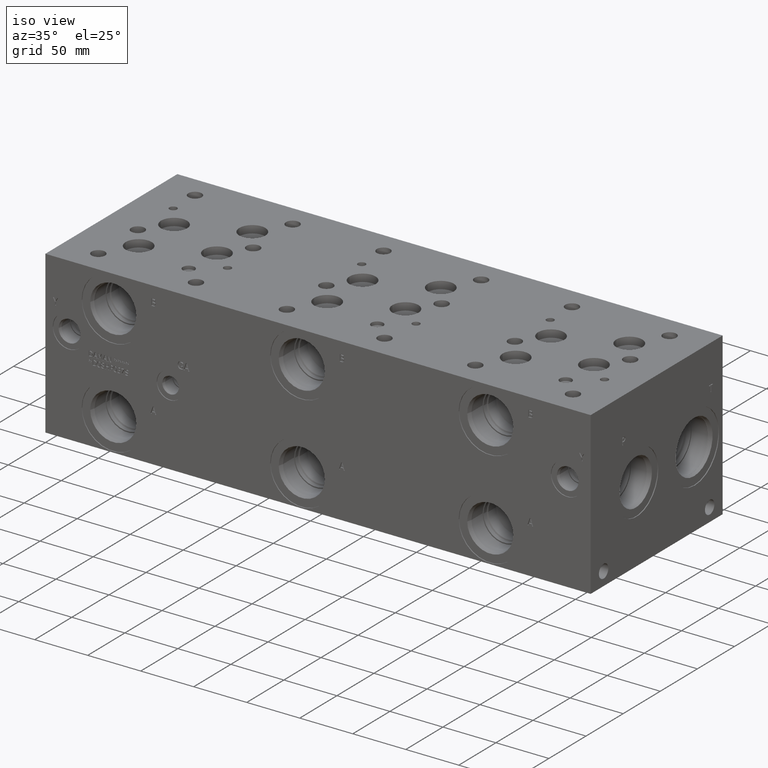
[diagram: clean part render]
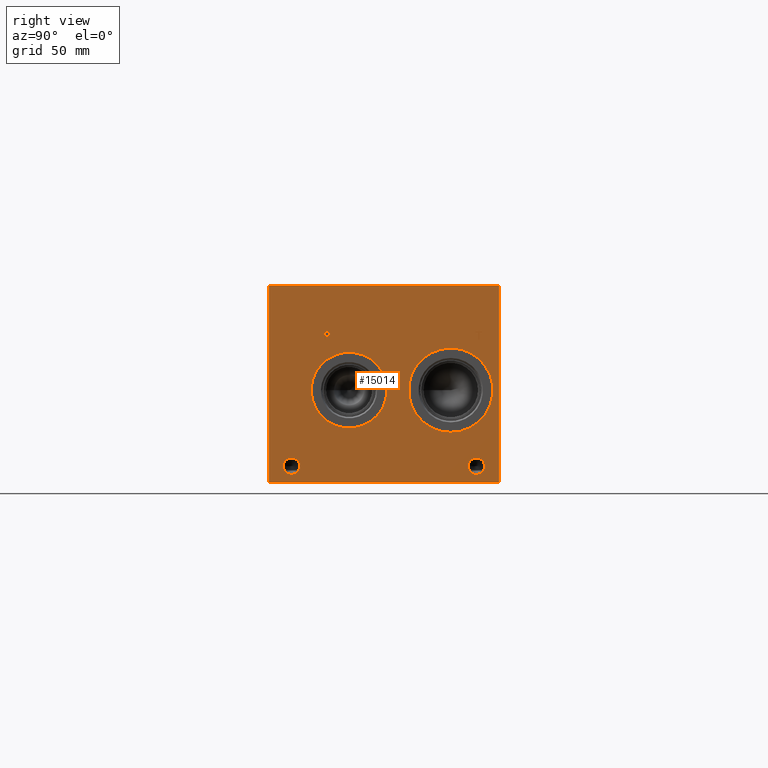
[diagram: tour spotlight — one face highlighted and labeled with its STEP entity id]
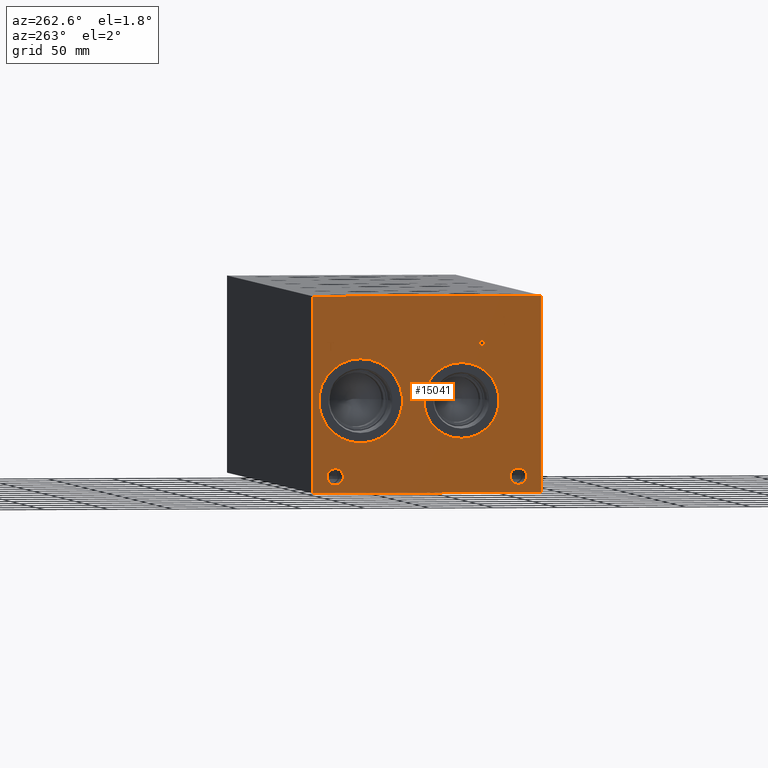
[diagram: tour spotlight — one face highlighted and labeled with its STEP entity id]
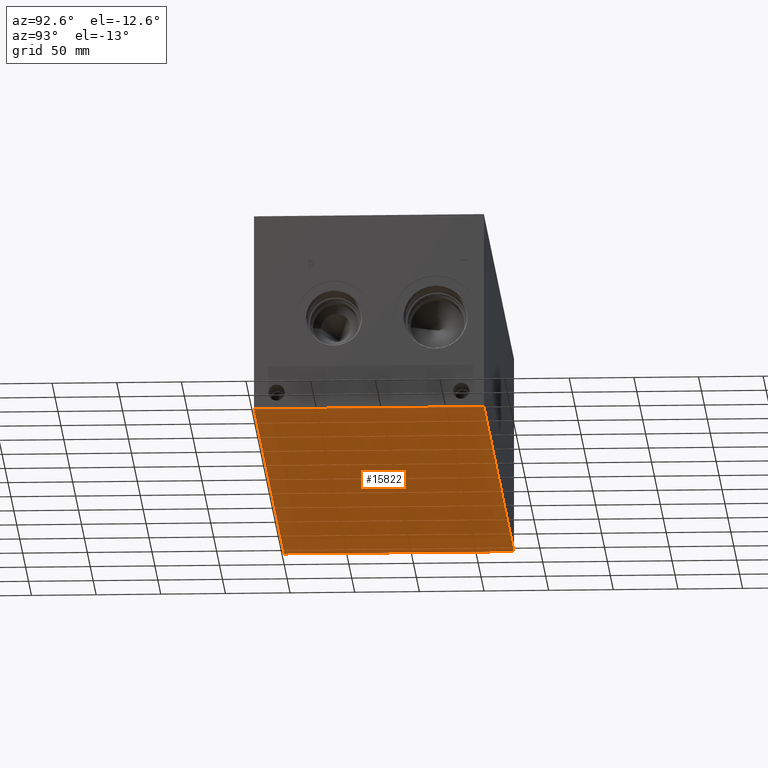
[diagram: tour spotlight — one face highlighted and labeled with its STEP entity id]
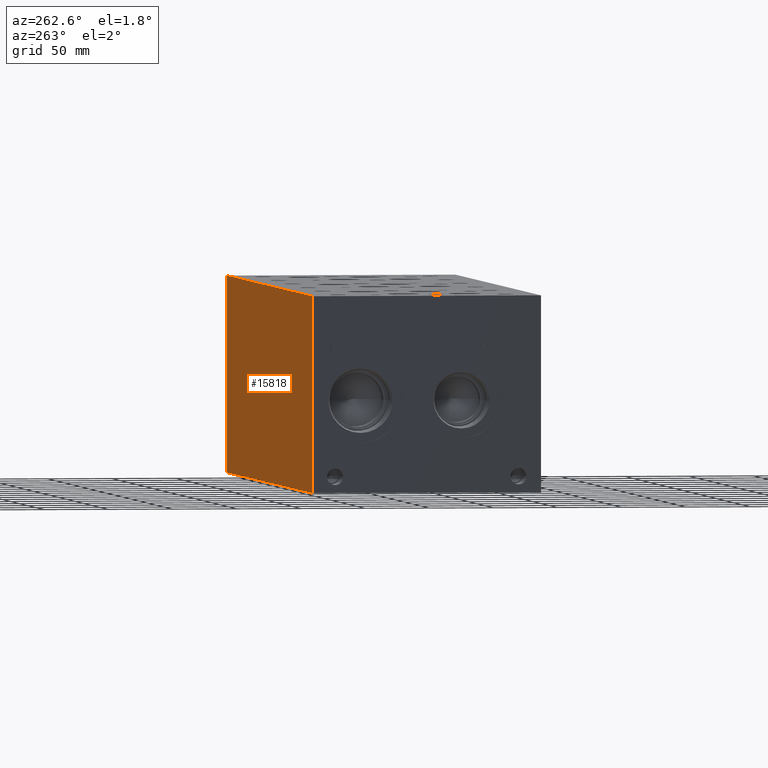
[diagram: tour spotlight — one face highlighted and labeled with its STEP entity id]
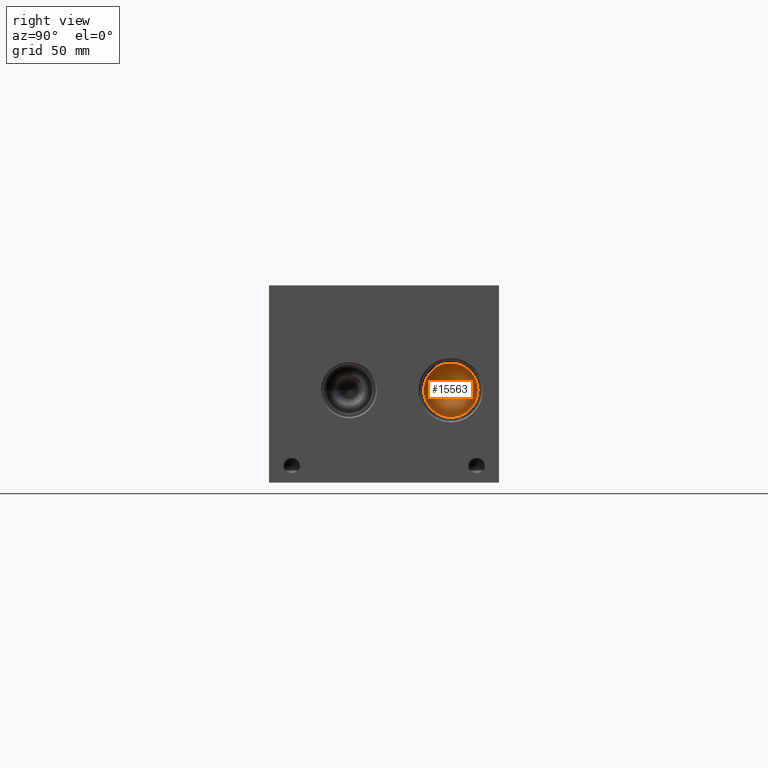
[diagram: tour spotlight — one face highlighted and labeled with its STEP entity id]
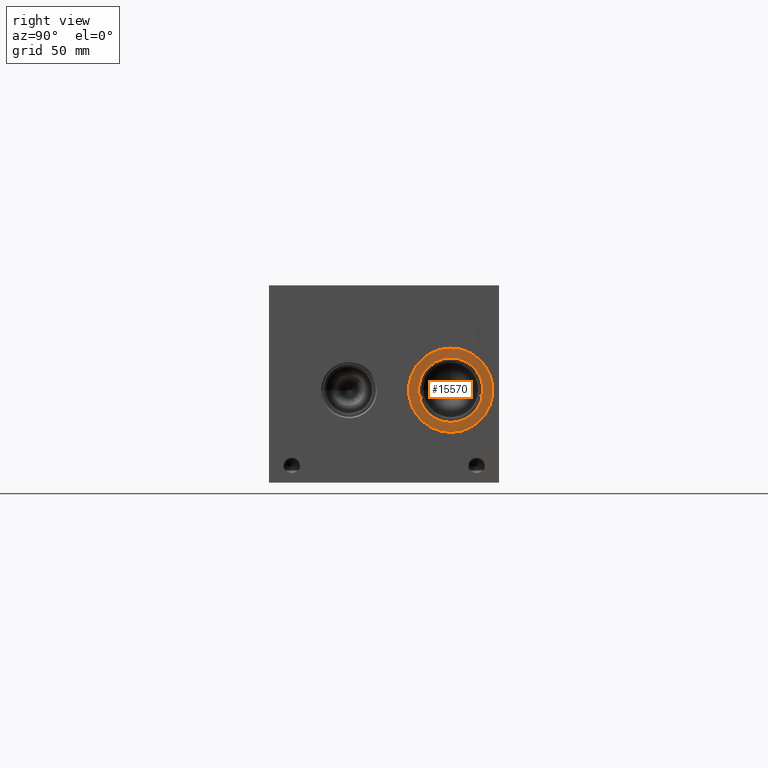
[diagram: tour spotlight — one face highlighted and labeled with its STEP entity id]
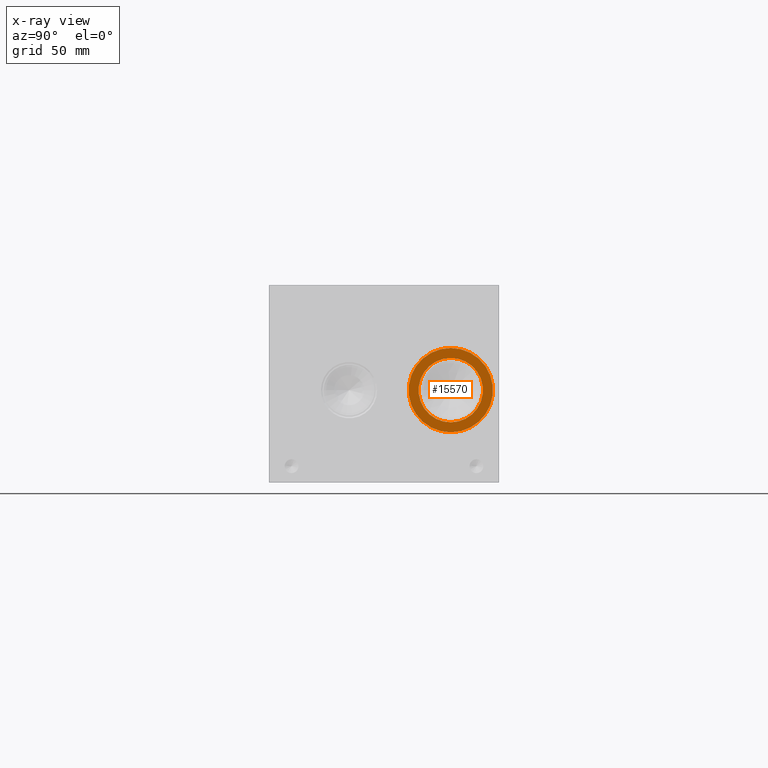
[diagram: x-ray of the same camera — body ghosted, this tour face saturated]
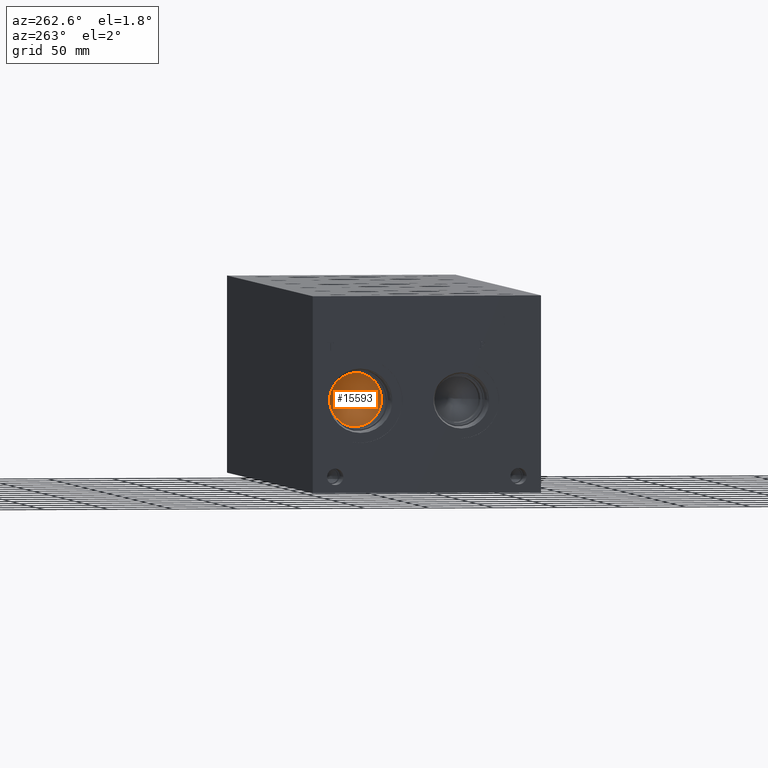
[diagram: tour spotlight — one face highlighted and labeled with its STEP entity id]
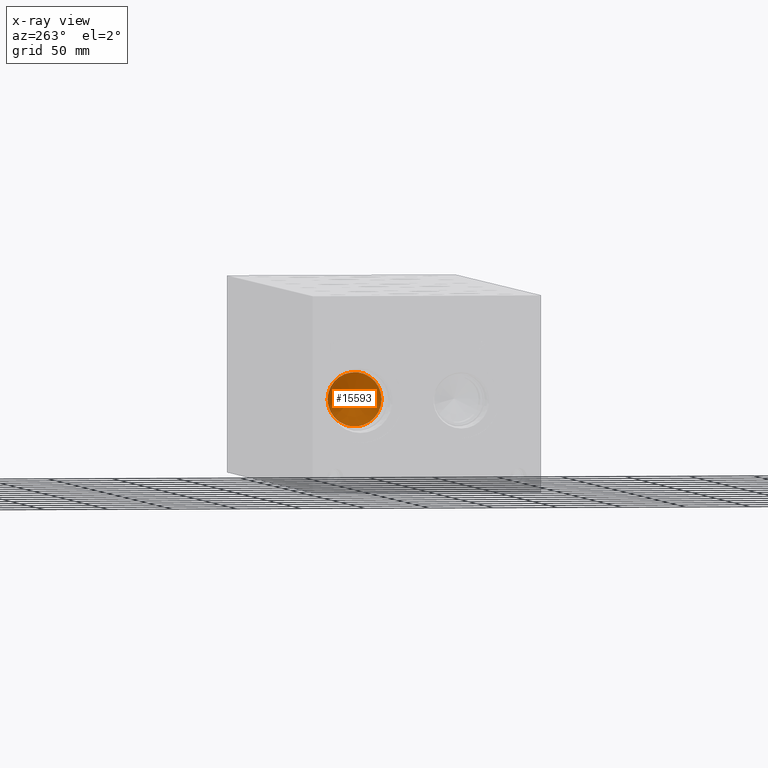
[diagram: x-ray of the same camera — body ghosted, this tour face saturated]
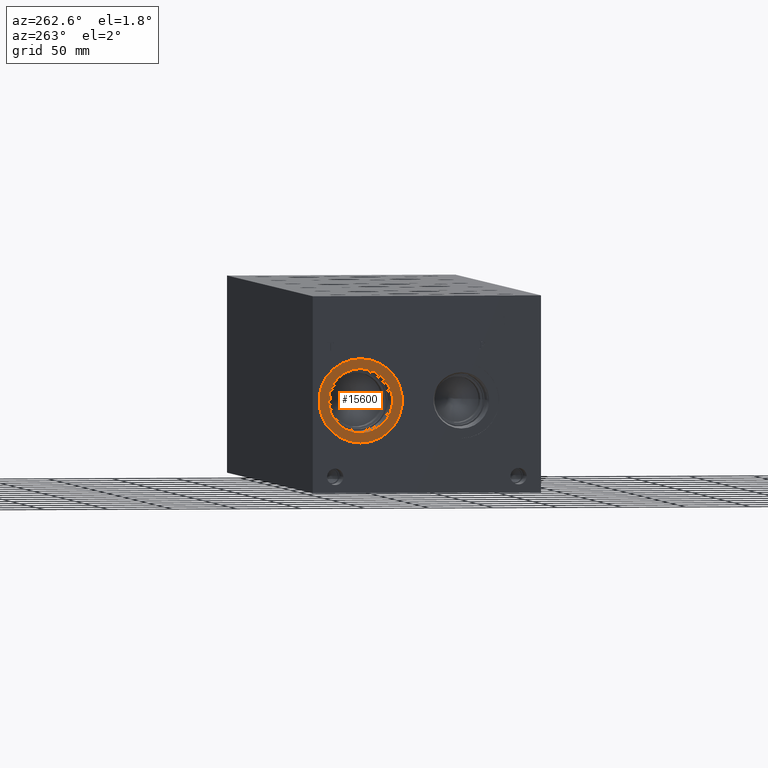
[diagram: tour spotlight — one face highlighted and labeled with its STEP entity id]
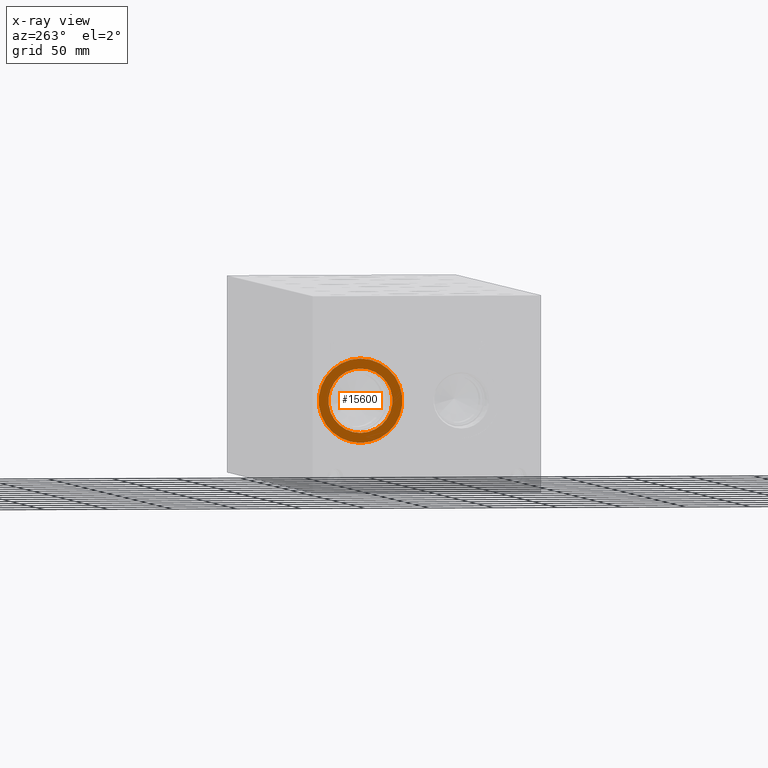
[diagram: x-ray of the same camera — body ghosted, this tour face saturated]
A machine part: a face-by-face anatomy tour. The part has 826 B-rep faces; the first image is the clean iso view, then the 8 largest visible faces are spotlighted one at a time (largest first), each with its STEP entity span.

Face 1 — right view, entity #15014. In plain terms, the highlighted planar face has unit normal (1, 0, 0).
Definition (entity closure, byte-faithful):
#239=CIRCLE('',#15847,32.5628);
#240=CIRCLE('',#15848,32.5628);
#241=CIRCLE('',#15849,29.2862);
#242=CIRCLE('',#15850,29.2862);
#243=CIRCLE('',#15851,6.35);
#244=CIRCLE('',#15852,6.35);
#245=CIRCLE('',#15853,6.35);
#246=CIRCLE('',#15854,6.35);
#716=FACE_BOUND('',#2145,.T.);
#717=FACE_BOUND('',#2146,.T.);
#718=FACE_BOUND('',#2147,.T.);
#719=FACE_BOUND('',#2148,.T.);
#720=FACE_BOUND('',#2149,.T.);
#721=FACE_BOUND('',#2150,.T.);
#882=PLANE('',#15846);
#1317=FACE_OUTER_BOUND('',#2144,.T.);
#2144=EDGE_LOOP('',(#9992,#9993,#9994,#9995));
#2145=EDGE_LOOP('',(#9996,#9997));
#2146=EDGE_LOOP('',(#9998,#9999));
#2147=EDGE_LOOP('',(#10000,#10001));
#2148=EDGE_LOOP('',(#10002,#10003));
#2149=EDGE_LOOP('',(#10004,#10005,#10006,#10007,#10008,#10009,#10010,#10011));
#2150=EDGE_LOOP('',(#10012,#10013,#10014,#10015,#10016,#10017,#10018,#10019,
#10020));
#3126=LINE('',#20729,#4494);
#3129=LINE('',#20735,#4497);
#3132=LINE('',#20741,#4500);
#3135=LINE('',#20747,#4503);
#3138=LINE('',#20753,#4506);
#3142=LINE('',#20796,#4510);
#3143=LINE('',#20798,#4511);
#3144=LINE('',#20800,#4512);
#3145=LINE('',#20801,#4513);
#3146=LINE('',#20820,#4514);
#3147=LINE('',#20822,#4515);
#3148=LINE('',#20824,#4516);
#3149=LINE('',#20826,#4517);
#3150=LINE('',#20828,#4518);
#3151=LINE('',#20830,#4519);
#3152=LINE('',#20832,#4520);
#3153=LINE('',#20833,#4521);
#4494=VECTOR('',#16991,10.);
#4497=VECTOR('',#16996,10.);
#4500=VECTOR('',#17001,10.);
#4503=VECTOR('',#17006,10.);
#4506=VECTOR('',#17011,10.);
#4510=VECTOR('',#17019,10.);
#4511=VECTOR('',#17020,10.);
#4512=VECTOR('',#17021,10.);
#4513=VECTOR('',#17022,10.);
#4514=VECTOR('',#17039,10.);
#4515=VECTOR('',#17040,10.);
#4516=VECTOR('',#17041,10.);
#4517=VECTOR('',#17042,10.);
#4518=VECTOR('',#17043,10.);
#4519=VECTOR('',#17044,10.);
#4520=VECTOR('',#17045,10.);
#4521=VECTOR('',#17046,10.);
#5854=B_SPLINE_CURVE_WITH_KNOTS('',2,(#20696,#20697,#20698,#20699),
 .UNSPECIFIED.,.F.,.F.,(3,1,3),(0.,1.,2.),.UNSPECIFIED.);
#5856=B_SPLINE_CURVE_WITH_KNOTS('',2,(#20717,#20718,#20719,#20720),
 .UNSPECIFIED.,.F.,.F.,(3,1,3),(0.,1.,2.),.UNSPECIFIED.);
#5858=B_SPLINE_CURVE_WITH_KNOTS('',2,(#20766,#20767,#20768,#20769),
 .UNSPECIFIED.,.F.,.F.,(3,1,3),(0.,1.,2.),.UNSPECIFIED.);
#5860=B_SPLINE_CURVE_WITH_KNOTS('',2,(#20784,#20785,#20786,#20787),
 .UNSPECIFIED.,.F.,.F.,(3,1,3),(0.,1.,2.),.UNSPECIFIED.);
#6208=VERTEX_POINT('',#20694);
#6209=VERTEX_POINT('',#20695);
#6212=VERTEX_POINT('',#20716);
#6214=VERTEX_POINT('',#20728);
#6216=VERTEX_POINT('',#20734);
#6218=VERTEX_POINT('',#20740);
#6220=VERTEX_POINT('',#20746);
#6222=VERTEX_POINT('',#20752);
#6224=VERTEX_POINT('',#20765);
#6226=VERTEX_POINT('',#20794);
#6227=VERTEX_POINT('',#20795);
#6228=VERTEX_POINT('',#20797);
#6229=VERTEX_POINT('',#20799);
#6230=VERTEX_POINT('',#20802);
#6231=VERTEX_POINT('',#20803);
#6232=VERTEX_POINT('',#20806);
#6233=VERTEX_POINT('',#20807);
#6234=VERTEX_POINT('',#20810);
#6235=VERTEX_POINT('',#20811);
#6236=VERTEX_POINT('',#20814);
#6237=VERTEX_POINT('',#20815);
#6238=VERTEX_POINT('',#20818);
#6239=VERTEX_POINT('',#20819);
#6240=VERTEX_POINT('',#20821);
#6241=VERTEX_POINT('',#20823);
#6242=VERTEX_POINT('',#20825);
#6243=VERTEX_POINT('',#20827);
#6244=VERTEX_POINT('',#20829);
#6245=VERTEX_POINT('',#20831);
#7741=EDGE_CURVE('',#6208,#6209,#5854,.T.);
#7745=EDGE_CURVE('',#6212,#6208,#5856,.T.);
#7748=EDGE_CURVE('',#6214,#6212,#3126,.T.);
#7751=EDGE_CURVE('',#6216,#6214,#3129,.T.);
#7754=EDGE_CURVE('',#6218,#6216,#3132,.T.);
#7757=EDGE_CURVE('',#6220,#6218,#3135,.T.);
#7760=EDGE_CURVE('',#6222,#6220,#3138,.T.);
#7763=EDGE_CURVE('',#6224,#6222,#5858,.T.);
#7766=EDGE_CURVE('',#6209,#6224,#5860,.T.);
#7768=EDGE_CURVE('',#6226,#6227,#3142,.T.);
#7769=EDGE_CURVE('',#6227,#6228,#3143,.T.);
#7770=EDGE_CURVE('',#6229,#6228,#3144,.T.);
#7771=EDGE_CURVE('',#6226,#6229,#3145,.T.);
#7772=EDGE_CURVE('',#6230,#6231,#239,.T.);
#7773=EDGE_CURVE('',#6231,#6230,#240,.T.);
#7774=EDGE_CURVE('',#6232,#6233,#241,.T.);
#7775=EDGE_CURVE('',#6233,#6232,#242,.T.);
#7776=EDGE_CURVE('',#6234,#6235,#243,.T.);
#7777=EDGE_CURVE('',#6235,#6234,#244,.T.);
#7778=EDGE_CURVE('',#6236,#6237,#245,.T.);
#7779=EDGE_CURVE('',#6237,#6236,#246,.T.);
#7780=EDGE_CURVE('',#6238,#6239,#3146,.T.);
#7781=EDGE_CURVE('',#6239,#6240,#3147,.T.);
#7782=EDGE_CURVE('',#6240,#6241,#3148,.T.);
#7783=EDGE_CURVE('',#6241,#6242,#3149,.T.);
#7784=EDGE_CURVE('',#6242,#6243,#3150,.T.);
#7785=EDGE_CURVE('',#6243,#6244,#3151,.T.);
#7786=EDGE_CURVE('',#6244,#6245,#3152,.T.);
#7787=EDGE_CURVE('',#6245,#6238,#3153,.T.);
#9992=ORIENTED_EDGE('',*,*,#7768,.T.);
#9993=ORIENTED_EDGE('',*,*,#7769,.T.);
#9994=ORIENTED_EDGE('',*,*,#7770,.F.);
#9995=ORIENTED_EDGE('',*,*,#7771,.F.);
#9996=ORIENTED_EDGE('',*,*,#7772,.T.);
#9997=ORIENTED_EDGE('',*,*,#7773,.T.);
#9998=ORIENTED_EDGE('',*,*,#7774,.T.);
#9999=ORIENTED_EDGE('',*,*,#7775,.T.);
#10000=ORIENTED_EDGE('',*,*,#7776,.T.);
#10001=ORIENTED_EDGE('',*,*,#7777,.T.);
#10002=ORIENTED_EDGE('',*,*,#7778,.T.);
#10003=ORIENTED_EDGE('',*,*,#7779,.T.);
#10004=ORIENTED_EDGE('',*,*,#7780,.T.);
#10005=ORIENTED_EDGE('',*,*,#7781,.T.);
#10006=ORIENTED_EDGE('',*,*,#7782,.T.);
#10007=ORIENTED_EDGE('',*,*,#7783,.T.);
#10008=ORIENTED_EDGE('',*,*,#7784,.T.);
#10009=ORIENTED_EDGE('',*,*,#7785,.T.);
#10010=ORIENTED_EDGE('',*,*,#7786,.T.);
#10011=ORIENTED_EDGE('',*,*,#7787,.T.);
#10012=ORIENTED_EDGE('',*,*,#7741,.T.);
#10013=ORIENTED_EDGE('',*,*,#7766,.T.);
#10014=ORIENTED_EDGE('',*,*,#7763,.T.);
#10015=ORIENTED_EDGE('',*,*,#7760,.T.);
#10016=ORIENTED_EDGE('',*,*,#7757,.T.);
#10017=ORIENTED_EDGE('',*,*,#7754,.T.);
#10018=ORIENTED_EDGE('',*,*,#7751,.T.);
#10019=ORIENTED_EDGE('',*,*,#7748,.T.);
#10020=ORIENTED_EDGE('',*,*,#7745,.T.);
#15014=ADVANCED_FACE('',(#1317,#716,#717,#718,#719,#720,#721),#882,.T.);
#15846=AXIS2_PLACEMENT_3D('',#20793,#17017,#17018);
#15847=AXIS2_PLACEMENT_3D('',#20804,#17023,#17024);
#15848=AXIS2_PLACEMENT_3D('',#20805,#17025,#17026);
#15849=AXIS2_PLACEMENT_3D('',#20808,#17027,#17028);
#15850=AXIS2_PLACEMENT_3D('',#20809,#17029,#17030);
#15851=AXIS2_PLACEMENT_3D('',#20812,#17031,#17032);
#15852=AXIS2_PLACEMENT_3D('',#20813,#17033,#17034);
#15853=AXIS2_PLACEMENT_3D('',#20816,#17035,#17036);
#15854=AXIS2_PLACEMENT_3D('',#20817,#17037,#17038);
#16991=DIRECTION('',(0.,1.,0.));
#16996=DIRECTION('',(0.,0.,1.));
#17001=DIRECTION('',(0.,-1.,0.));
#17006=DIRECTION('',(0.,0.,-1.));
#17011=DIRECTION('',(0.,-1.,0.));
#17017=DIRECTION('center_axis',(1.,0.,0.));
#17018=DIRECTION('ref_axis',(0.,1.,0.));
#17019=DIRECTION('',(0.,1.,0.));
#17020=DIRECTION('',(0.,0.,1.));
#17021=DIRECTION('',(0.,1.,0.));
#17022=DIRECTION('',(0.,0.,1.));
#17023=DIRECTION('center_axis',(-1.,0.,0.));
#17024=DIRECTION('ref_axis',(0.,0.,-1.));
#17025=DIRECTION('center_axis',(-1.,0.,0.));
#17026=DIRECTION('ref_axis',(0.,0.,-1.));
#17027=DIRECTION('center_axis',(-1.,0.,0.));
#17028=DIRECTION('ref_axis',(0.,1.,0.));
#17029=DIRECTION('center_axis',(-1.,0.,0.));
#17030=DIRECTION('ref_axis',(0.,1.,0.));
#17031=DIRECTION('center_axis',(-1.,0.,0.));
#17032=DIRECTION('ref_axis',(0.,1.,0.));
#17033=DIRECTION('center_axis',(-1.,0.,0.));
#17034=DIRECTION('ref_axis',(0.,1.,0.));
#17035=DIRECTION('center_axis',(-1.,0.,0.));
#17036=DIRECTION('ref_axis',(0.,1.,0.));
#17037=DIRECTION('center_axis',(-1.,0.,0.));
#17038=DIRECTION('ref_axis',(0.,1.,0.));
#17039=DIRECTION('',(0.,-1.,0.));
#17040=DIRECTION('',(0.,0.,1.));
#17041=DIRECTION('',(0.,-1.,0.));
#17042=DIRECTION('',(0.,0.,1.));
#17043=DIRECTION('',(0.,1.,0.));
#17044=DIRECTION('',(0.,0.,-1.));
#17045=DIRECTION('',(0.,-1.,0.));
#17046=DIRECTION('',(0.,0.,-1.));
#20694=CARTESIAN_POINT('',(514.35,45.9693172023594,116.285018143971));
#20695=CARTESIAN_POINT('',(514.35,46.725759654532,114.766987372604));
#20696=CARTESIAN_POINT('Ctrl Pts',(514.35,45.9693172023594,116.285018143971));
#20697=CARTESIAN_POINT('Ctrl Pts',(514.35,46.3243820268486,116.043162393956));
#20698=CARTESIAN_POINT('Ctrl Pts',(514.35,46.725759654532,115.297011675827));
#20699=CARTESIAN_POINT('Ctrl Pts',(514.35,46.725759654532,114.766987372604));
#20716=CARTESIAN_POINT('',(514.35,44.3072021543883,116.681249904633));
#20717=CARTESIAN_POINT('Ctrl Pts',(514.35,44.3072021543883,116.681249904633));
#20718=CARTESIAN_POINT('Ctrl Pts',(514.35,44.8732475267624,116.681249904633));
#20719=CARTESIAN_POINT('Ctrl Pts',(514.35,45.665711048086,116.495998691856));
#20720=CARTESIAN_POINT('Ctrl Pts',(514.35,45.9693172023594,116.285018143971));
#20728=CARTESIAN_POINT('',(514.35,42.7119833776978,116.681249904633));
#20729=CARTESIAN_POINT('',(514.35,21.3559916888489,116.681249904633));
#20734=CARTESIAN_POINT('',(514.35,42.7119833776978,110.33125));
#20735=CARTESIAN_POINT('',(514.35,42.7119833776978,55.165625));
#20740=CARTESIAN_POINT('',(514.35,43.5559055692373,110.33125));
#20741=CARTESIAN_POINT('',(514.35,21.7779527846186,110.33125));
#20746=CARTESIAN_POINT('',(514.35,43.5559055692373,112.698348829928));
#20747=CARTESIAN_POINT('',(514.35,43.5559055692373,56.3491744149639));
#20752=CARTESIAN_POINT('',(514.35,44.2711810852372,112.698348829928));
#20753=CARTESIAN_POINT('',(514.35,22.1355905426186,112.698348829928));
#20765=CARTESIAN_POINT('',(514.35,46.1700060162011,113.35701980869));
#20766=CARTESIAN_POINT('Ctrl Pts',(514.35,46.1700060162011,113.35701980869));
#20767=CARTESIAN_POINT('Ctrl Pts',(514.35,45.8406705268198,113.032830186331));
#20768=CARTESIAN_POINT('Ctrl Pts',(514.35,44.9504355320861,112.698348829928));
#20769=CARTESIAN_POINT('Ctrl Pts',(514.35,44.2711810852372,112.698348829928));
#20784=CARTESIAN_POINT('Ctrl Pts',(514.35,46.725759654532,114.766987372604));
#20785=CARTESIAN_POINT('Ctrl Pts',(514.35,46.725759654532,114.355318010877));
#20786=CARTESIAN_POINT('Ctrl Pts',(514.35,46.4324452343018,113.61431315977));
#20787=CARTESIAN_POINT('Ctrl Pts',(514.35,46.1700060162011,113.35701980869));
#20793=CARTESIAN_POINT('Origin',(514.35,0.,0.));
#20794=CARTESIAN_POINT('',(514.35,0.,0.));
#20795=CARTESIAN_POINT('',(514.35,177.8,0.));
#20796=CARTESIAN_POINT('',(514.35,0.,0.));
#20797=CARTESIAN_POINT('',(514.35,177.8,152.4));
#20798=CARTESIAN_POINT('',(514.35,177.8,0.));
#20799=CARTESIAN_POINT('',(514.35,0.,152.4));
#20800=CARTESIAN_POINT('',(514.35,0.,152.4));
#20801=CARTESIAN_POINT('',(514.35,0.,0.));
#20802=CARTESIAN_POINT('',(514.35,140.4874,38.862));
#20803=CARTESIAN_POINT('',(514.35,140.4874,103.9876));
#20804=CARTESIAN_POINT('Origin',(514.35,140.4874,71.4248));
#20805=CARTESIAN_POINT('Origin',(514.35,140.4874,71.4248));
#20806=CARTESIAN_POINT('',(514.35,91.2114,71.4248));
#20807=CARTESIAN_POINT('',(514.35,32.639,71.4248));
#20808=CARTESIAN_POINT('Origin',(514.35,61.9252,71.4248));
#20809=CARTESIAN_POINT('Origin',(514.35,61.9252,71.4248));
#20810=CARTESIAN_POINT('',(514.35,166.6748,12.7));
#20811=CARTESIAN_POINT('',(514.35,153.9748,12.7));
#20812=CARTESIAN_POINT('Origin',(514.35,160.3248,12.7));
#20813=CARTESIAN_POINT('Origin',(514.35,160.3248,12.7));
#20814=CARTESIAN_POINT('',(514.35,23.8252,12.7));
#20815=CARTESIAN_POINT('',(514.35,11.1252,12.7));
#20816=CARTESIAN_POINT('Origin',(514.35,17.4752,12.7));
#20817=CARTESIAN_POINT('Origin',(514.35,17.4752,12.7));
#20818=CARTESIAN_POINT('',(514.35,162.506565271453,110.2868));
#20819=CARTESIAN_POINT('',(514.35,161.662643079913,110.2868));
#20820=CARTESIAN_POINT('',(514.35,81.2532826357265,110.2868));
#20821=CARTESIAN_POINT('',(514.35,161.662643079913,115.885503319482));
#20822=CARTESIAN_POINT('',(514.35,161.662643079913,55.1434));
#20823=CARTESIAN_POINT('',(514.35,159.532254132978,115.885503319482));
#20824=CARTESIAN_POINT('',(514.35,80.8313215399567,115.885503319482));
#20825=CARTESIAN_POINT('',(514.35,159.532254132978,116.636799904633));
#20826=CARTESIAN_POINT('',(514.35,159.532254132978,57.9427516597408));
#20827=CARTESIAN_POINT('',(514.35,164.636954218388,116.636799904633));
#20828=CARTESIAN_POINT('',(514.35,79.7661270664892,116.636799904633));
#20829=CARTESIAN_POINT('',(514.35,164.636954218388,115.885503319482));
#20830=CARTESIAN_POINT('',(514.35,164.636954218388,58.3183999523163));
#20831=CARTESIAN_POINT('',(514.35,162.506565271453,115.885503319482));
#20832=CARTESIAN_POINT('',(514.35,82.318477109194,115.885503319482));
#20833=CARTESIAN_POINT('',(514.35,162.506565271453,57.9427516597408));

Face 2 — auxiliary view, entity #15041. In plain terms, the highlighted planar face has unit normal (-1, 0, 0).
Definition (entity closure, byte-faithful):
#247=CIRCLE('',#15874,32.5628);
#248=CIRCLE('',#15875,32.5628);
#249=CIRCLE('',#15876,29.2862);
#250=CIRCLE('',#15877,29.2862);
#251=CIRCLE('',#15878,6.35);
#252=CIRCLE('',#15879,6.35);
#253=CIRCLE('',#15880,6.35);
#254=CIRCLE('',#15881,6.35);
#723=FACE_BOUND('',#2179,.T.);
#724=FACE_BOUND('',#2180,.T.);
#725=FACE_BOUND('',#2181,.T.);
#726=FACE_BOUND('',#2182,.T.);
#727=FACE_BOUND('',#2183,.T.);
#728=FACE_BOUND('',#2184,.T.);
#901=PLANE('',#15873);
#1344=FACE_OUTER_BOUND('',#2178,.T.);
#2178=EDGE_LOOP('',(#10141,#10142,#10143,#10144));
#2179=EDGE_LOOP('',(#10145,#10146));
#2180=EDGE_LOOP('',(#10147,#10148));
#2181=EDGE_LOOP('',(#10149,#10150));
#2182=EDGE_LOOP('',(#10151,#10152));
#2183=EDGE_LOOP('',(#10153,#10154,#10155,#10156,#10157,#10158,#10159,#10160));
#2184=EDGE_LOOP('',(#10161,#10162,#10163,#10164,#10165,#10166,#10167,#10168,
#10169));
#3186=LINE('',#21004,#4554);
#3189=LINE('',#21010,#4557);
#3192=LINE('',#21016,#4560);
#3195=LINE('',#21022,#4563);
#3198=LINE('',#21028,#4566);
#3202=LINE('',#21071,#4570);
#3203=LINE('',#21073,#4571);
#3204=LINE('',#21075,#4572);
#3205=LINE('',#21076,#4573);
#3206=LINE('',#21095,#4574);
#3207=LINE('',#21097,#4575);
#3208=LINE('',#21099,#4576);
#3209=LINE('',#21101,#4577);
#3210=LINE('',#21103,#4578);
#3211=LINE('',#21105,#4579);
#3212=LINE('',#21107,#4580);
#3213=LINE('',#21108,#4581);
#4554=VECTOR('',#17105,10.);
#4557=VECTOR('',#17110,10.);
#4560=VECTOR('',#17115,10.);
#4563=VECTOR('',#17120,10.);
#4566=VECTOR('',#17125,10.);
#4570=VECTOR('',#17133,10.);
#4571=VECTOR('',#17134,10.);
#4572=VECTOR('',#17135,10.);
#4573=VECTOR('',#17136,10.);
#4574=VECTOR('',#17153,10.);
#4575=VECTOR('',#17154,10.);
#4576=VECTOR('',#17155,10.);
#4577=VECTOR('',#17156,10.);
#4578=VECTOR('',#17157,10.);
#4579=VECTOR('',#17158,10.);
#4580=VECTOR('',#17159,10.);
#4581=VECTOR('',#17160,10.);
#5870=B_SPLINE_CURVE_WITH_KNOTS('',2,(#20971,#20972,#20973,#20974),
 .UNSPECIFIED.,.F.,.F.,(3,1,3),(0.,1.,2.),.UNSPECIFIED.);
#5872=B_SPLINE_CURVE_WITH_KNOTS('',2,(#20992,#20993,#20994,#20995),
 .UNSPECIFIED.,.F.,.F.,(3,1,3),(0.,1.,2.),.UNSPECIFIED.);
#5874=B_SPLINE_CURVE_WITH_KNOTS('',2,(#21041,#21042,#21043,#21044),
 .UNSPECIFIED.,.F.,.F.,(3,1,3),(0.,1.,2.),.UNSPECIFIED.);
#5876=B_SPLINE_CURVE_WITH_KNOTS('',2,(#21059,#21060,#21061,#21062),
 .UNSPECIFIED.,.F.,.F.,(3,1,3),(0.,1.,2.),.UNSPECIFIED.);
#6268=VERTEX_POINT('',#20969);
#6269=VERTEX_POINT('',#20970);
#6272=VERTEX_POINT('',#20991);
#6274=VERTEX_POINT('',#21003);
#6276=VERTEX_POINT('',#21009);
#6278=VERTEX_POINT('',#21015);
#6280=VERTEX_POINT('',#21021);
#6282=VERTEX_POINT('',#21027);
#6284=VERTEX_POINT('',#21040);
#6286=VERTEX_POINT('',#21069);
#6287=VERTEX_POINT('',#21070);
#6288=VERTEX_POINT('',#21072);
#6289=VERTEX_POINT('',#21074);
#6290=VERTEX_POINT('',#21077);
#6291=VERTEX_POINT('',#21078);
#6292=VERTEX_POINT('',#21081);
#6293=VERTEX_POINT('',#21082);
#6294=VERTEX_POINT('',#21085);
#6295=VERTEX_POINT('',#21086);
#6296=VERTEX_POINT('',#21089);
#6297=VERTEX_POINT('',#21090);
#6298=VERTEX_POINT('',#21093);
#6299=VERTEX_POINT('',#21094);
#6300=VERTEX_POINT('',#21096);
#6301=VERTEX_POINT('',#21098);
#6302=VERTEX_POINT('',#21100);
#6303=VERTEX_POINT('',#21102);
#6304=VERTEX_POINT('',#21104);
#6305=VERTEX_POINT('',#21106);
#7825=EDGE_CURVE('',#6268,#6269,#5870,.T.);
#7829=EDGE_CURVE('',#6272,#6268,#5872,.T.);
#7832=EDGE_CURVE('',#6274,#6272,#3186,.T.);
#7835=EDGE_CURVE('',#6276,#6274,#3189,.T.);
#7838=EDGE_CURVE('',#6278,#6276,#3192,.T.);
#7841=EDGE_CURVE('',#6280,#6278,#3195,.T.);
#7844=EDGE_CURVE('',#6282,#6280,#3198,.T.);
#7847=EDGE_CURVE('',#6284,#6282,#5874,.T.);
#7850=EDGE_CURVE('',#6269,#6284,#5876,.T.);
#7852=EDGE_CURVE('',#6286,#6287,#3202,.T.);
#7853=EDGE_CURVE('',#6287,#6288,#3203,.T.);
#7854=EDGE_CURVE('',#6289,#6288,#3204,.T.);
#7855=EDGE_CURVE('',#6286,#6289,#3205,.T.);
#7856=EDGE_CURVE('',#6290,#6291,#247,.T.);
#7857=EDGE_CURVE('',#6291,#6290,#248,.T.);
#7858=EDGE_CURVE('',#6292,#6293,#249,.T.);
#7859=EDGE_CURVE('',#6293,#6292,#250,.T.);
#7860=EDGE_CURVE('',#6294,#6295,#251,.T.);
#7861=EDGE_CURVE('',#6295,#6294,#252,.T.);
#7862=EDGE_CURVE('',#6296,#6297,#253,.T.);
#7863=EDGE_CURVE('',#6297,#6296,#254,.T.);
#7864=EDGE_CURVE('',#6298,#6299,#3206,.T.);
#7865=EDGE_CURVE('',#6299,#6300,#3207,.T.);
#7866=EDGE_CURVE('',#6300,#6301,#3208,.T.);
#7867=EDGE_CURVE('',#6301,#6302,#3209,.T.);
#7868=EDGE_CURVE('',#6302,#6303,#3210,.T.);
#7869=EDGE_CURVE('',#6303,#6304,#3211,.T.);
#7870=EDGE_CURVE('',#6304,#6305,#3212,.T.);
#7871=EDGE_CURVE('',#6305,#6298,#3213,.T.);
#10141=ORIENTED_EDGE('',*,*,#7852,.T.);
#10142=ORIENTED_EDGE('',*,*,#7853,.T.);
#10143=ORIENTED_EDGE('',*,*,#7854,.F.);
#10144=ORIENTED_EDGE('',*,*,#7855,.F.);
#10145=ORIENTED_EDGE('',*,*,#7856,.T.);
#10146=ORIENTED_EDGE('',*,*,#7857,.T.);
#10147=ORIENTED_EDGE('',*,*,#7858,.T.);
#10148=ORIENTED_EDGE('',*,*,#7859,.T.);
#10149=ORIENTED_EDGE('',*,*,#7860,.T.);
#10150=ORIENTED_EDGE('',*,*,#7861,.T.);
#10151=ORIENTED_EDGE('',*,*,#7862,.T.);
#10152=ORIENTED_EDGE('',*,*,#7863,.T.);
#10153=ORIENTED_EDGE('',*,*,#7864,.T.);
#10154=ORIENTED_EDGE('',*,*,#7865,.T.);
#10155=ORIENTED_EDGE('',*,*,#7866,.T.);
#10156=ORIENTED_EDGE('',*,*,#7867,.T.);
#10157=ORIENTED_EDGE('',*,*,#7868,.T.);
#10158=ORIENTED_EDGE('',*,*,#7869,.T.);
#10159=ORIENTED_EDGE('',*,*,#7870,.T.);
#10160=ORIENTED_EDGE('',*,*,#7871,.T.);
#10161=ORIENTED_EDGE('',*,*,#7825,.T.);
#10162=ORIENTED_EDGE('',*,*,#7850,.T.);
#10163=ORIENTED_EDGE('',*,*,#7847,.T.);
#10164=ORIENTED_EDGE('',*,*,#7844,.T.);
#10165=ORIENTED_EDGE('',*,*,#7841,.T.);
#10166=ORIENTED_EDGE('',*,*,#7838,.T.);
#10167=ORIENTED_EDGE('',*,*,#7835,.T.);
#10168=ORIENTED_EDGE('',*,*,#7832,.T.);
#10169=ORIENTED_EDGE('',*,*,#7829,.T.);
#15041=ADVANCED_FACE('',(#1344,#723,#724,#725,#726,#727,#728),#901,.T.);
#15873=AXIS2_PLACEMENT_3D('',#21068,#17131,#17132);
#15874=AXIS2_PLACEMENT_3D('',#21079,#17137,#17138);
#15875=AXIS2_PLACEMENT_3D('',#21080,#17139,#17140);
#15876=AXIS2_PLACEMENT_3D('',#21083,#17141,#17142);
#15877=AXIS2_PLACEMENT_3D('',#21084,#17143,#17144);
#15878=AXIS2_PLACEMENT_3D('',#21087,#17145,#17146);
#15879=AXIS2_PLACEMENT_3D('',#21088,#17147,#17148);
#15880=AXIS2_PLACEMENT_3D('',#21091,#17149,#17150);
#15881=AXIS2_PLACEMENT_3D('',#21092,#17151,#17152);
#17105=DIRECTION('',(0.,-1.,0.));
#17110=DIRECTION('',(0.,-2.79741238752512E-15,1.));
#17115=DIRECTION('',(0.,1.,0.));
#17120=DIRECTION('',(0.,3.75218139804998E-15,-1.));
#17125=DIRECTION('',(0.,1.,0.));
#17131=DIRECTION('center_axis',(-1.,0.,0.));
#17132=DIRECTION('ref_axis',(0.,-1.,0.));
#17133=DIRECTION('',(0.,-1.,0.));
#17134=DIRECTION('',(0.,0.,1.));
#17135=DIRECTION('',(0.,-1.,0.));
#17136=DIRECTION('',(0.,0.,1.));
#17137=DIRECTION('center_axis',(1.,0.,0.));
#17138=DIRECTION('ref_axis',(0.,0.,1.));
#17139=DIRECTION('center_axis',(1.,0.,0.));
#17140=DIRECTION('ref_axis',(0.,0.,1.));
#17141=DIRECTION('center_axis',(1.,0.,0.));
#17142=DIRECTION('ref_axis',(0.,0.,1.));
#17143=DIRECTION('center_axis',(1.,0.,0.));
#17144=DIRECTION('ref_axis',(0.,0.,1.));
#17145=DIRECTION('center_axis',(1.,0.,0.));
#17146=DIRECTION('ref_axis',(0.,1.,0.));
#17147=DIRECTION('center_axis',(1.,0.,0.));
#17148=DIRECTION('ref_axis',(0.,1.,0.));
#17149=DIRECTION('center_axis',(1.,0.,0.));
#17150=DIRECTION('ref_axis',(0.,1.,0.));
#17151=DIRECTION('center_axis',(1.,0.,0.));
#17152=DIRECTION('ref_axis',(0.,1.,0.));
#17153=DIRECTION('',(0.,1.,0.));
#17154=DIRECTION('',(0.,0.,1.));
#17155=DIRECTION('',(0.,1.,0.));
#17156=DIRECTION('',(0.,0.,1.));
#17157=DIRECTION('',(0.,-1.,0.));
#17158=DIRECTION('',(0.,0.,-1.));
#17159=DIRECTION('',(0.,1.,0.));
#17160=DIRECTION('',(0.,0.,-1.));
#20969=CARTESIAN_POINT('',(0.,44.5181827976406,117.078768143971));
#20970=CARTESIAN_POINT('',(0.,43.761740345468,115.560737372604));
#20971=CARTESIAN_POINT('Ctrl Pts',(0.,44.5181827976406,117.078768143971));
#20972=CARTESIAN_POINT('Ctrl Pts',(0.,44.1631179731514,116.836912393956));
#20973=CARTESIAN_POINT('Ctrl Pts',(0.,43.761740345468,116.090761675827));
#20974=CARTESIAN_POINT('Ctrl Pts',(0.,43.761740345468,115.560737372604));
#20991=CARTESIAN_POINT('',(0.,46.1802978456117,117.474999904633));
#20992=CARTESIAN_POINT('Ctrl Pts',(0.,46.1802978456117,117.474999904633));
#20993=CARTESIAN_POINT('Ctrl Pts',(0.,45.6142524732376,117.474999904633));
#20994=CARTESIAN_POINT('Ctrl Pts',(0.,44.821788951914,117.289748691856));
#20995=CARTESIAN_POINT('Ctrl Pts',(0.,44.5181827976406,117.078768143971));
#21003=CARTESIAN_POINT('',(0.,47.7755166223022,117.474999904633));
#21004=CARTESIAN_POINT('',(0.,112.787758311151,117.474999904633));
#21009=CARTESIAN_POINT('',(0.,47.7755166223022,111.125));
#21010=CARTESIAN_POINT('',(0.,47.7755166223024,55.5624999999998));
#21015=CARTESIAN_POINT('',(0.,46.9315944307627,111.125));
#21016=CARTESIAN_POINT('',(0.,112.365797215381,111.125));
#21021=CARTESIAN_POINT('',(0.,46.9315944307627,113.492098829928));
#21022=CARTESIAN_POINT('',(0.,46.9315944307629,56.7460494149637));
#21027=CARTESIAN_POINT('',(0.,46.2163189147628,113.492098829928));
#21028=CARTESIAN_POINT('',(0.,112.008159457381,113.492098829928));
#21040=CARTESIAN_POINT('',(0.,44.3174939837989,114.15076980869));
#21041=CARTESIAN_POINT('Ctrl Pts',(0.,44.3174939837989,114.15076980869));
#21042=CARTESIAN_POINT('Ctrl Pts',(0.,44.6468294731802,113.826580186331));
#21043=CARTESIAN_POINT('Ctrl Pts',(0.,45.5370644679139,113.492098829928));
#21044=CARTESIAN_POINT('Ctrl Pts',(0.,46.2163189147628,113.492098829928));
#21059=CARTESIAN_POINT('Ctrl Pts',(0.,43.761740345468,115.560737372604));
#21060=CARTESIAN_POINT('Ctrl Pts',(0.,43.761740345468,115.149068010877));
#21061=CARTESIAN_POINT('Ctrl Pts',(0.,44.0550547656982,114.408063159769));
#21062=CARTESIAN_POINT('Ctrl Pts',(0.,44.3174939837989,114.15076980869));
#21068=CARTESIAN_POINT('Origin',(0.,177.8,0.));
#21069=CARTESIAN_POINT('',(0.,177.8,0.));
#21070=CARTESIAN_POINT('',(0.,0.,0.));
#21071=CARTESIAN_POINT('',(0.,177.8,0.));
#21072=CARTESIAN_POINT('',(0.,0.,152.4));
#21073=CARTESIAN_POINT('',(0.,0.,0.));
#21074=CARTESIAN_POINT('',(0.,177.8,152.4));
#21075=CARTESIAN_POINT('',(0.,177.8,152.4));
#21076=CARTESIAN_POINT('',(0.,177.8,0.));
#21077=CARTESIAN_POINT('',(0.,140.4874,103.9876));
#21078=CARTESIAN_POINT('',(0.,140.4874,38.862));
#21079=CARTESIAN_POINT('Origin',(0.,140.4874,71.4248));
#21080=CARTESIAN_POINT('Origin',(0.,140.4874,71.4248));
#21081=CARTESIAN_POINT('',(0.,61.9252,100.711));
#21082=CARTESIAN_POINT('',(0.,61.9252,42.1386));
#21083=CARTESIAN_POINT('Origin',(0.,61.9252,71.4248));
#21084=CARTESIAN_POINT('Origin',(0.,61.9252,71.4248));
#21085=CARTESIAN_POINT('',(0.,166.6748,12.7));
#21086=CARTESIAN_POINT('',(0.,153.9748,12.7));
#21087=CARTESIAN_POINT('Origin',(0.,160.3248,12.7));
#21088=CARTESIAN_POINT('Origin',(0.,160.3248,12.7));
#21089=CARTESIAN_POINT('',(0.,23.8252,12.7));
#21090=CARTESIAN_POINT('',(0.,11.1252,12.7));
#21091=CARTESIAN_POINT('Origin',(0.,17.4752,12.7));
#21092=CARTESIAN_POINT('Origin',(0.,17.4752,12.7));
#21093=CARTESIAN_POINT('',(0.,163.718334728547,110.33125));
#21094=CARTESIAN_POINT('',(0.,164.562256920086,110.33125));
#21095=CARTESIAN_POINT('',(0.,170.759167364274,110.33125));
#21096=CARTESIAN_POINT('',(0.,164.562256920086,115.929953319482));
#21097=CARTESIAN_POINT('',(0.,164.562256920086,55.165625));
#21098=CARTESIAN_POINT('',(0.,166.692645867022,115.929953319482));
#21099=CARTESIAN_POINT('',(0.,171.181128460043,115.929953319482));
#21100=CARTESIAN_POINT('',(0.,166.692645867022,116.681249904633));
#21101=CARTESIAN_POINT('',(0.,166.692645867022,57.9649766597408));
#21102=CARTESIAN_POINT('',(0.,161.587945781612,116.681249904633));
#21103=CARTESIAN_POINT('',(0.,172.246322933511,116.681249904633));
#21104=CARTESIAN_POINT('',(0.,161.587945781612,115.929953319482));
#21105=CARTESIAN_POINT('',(0.,161.587945781612,58.3406249523163));
#21106=CARTESIAN_POINT('',(0.,163.718334728547,115.929953319482));
#21107=CARTESIAN_POINT('',(0.,169.693972890806,115.929953319482));
#21108=CARTESIAN_POINT('',(0.,163.718334728547,57.9649766597408));

Face 3 — auxiliary view, entity #15822. In plain terms, the highlighted planar face has unit normal (0, 0, 1).
Definition (entity closure, byte-faithful):
#1299=PLANE('',#16964);
#2125=FACE_OUTER_BOUND('',#3109,.T.);
#3109=EDGE_LOOP('',(#14292,#14293,#14294,#14295));
#3142=LINE('',#20796,#4510);
#3202=LINE('',#21071,#4570);
#3519=LINE('',#23329,#4887);
#4476=LINE('',#27392,#5844);
#4510=VECTOR('',#17019,10.);
#4570=VECTOR('',#17133,10.);
#4887=VECTOR('',#17636,10.);
#5844=VECTOR('',#20581,10.);
#6226=VERTEX_POINT('',#20794);
#6227=VERTEX_POINT('',#20795);
#6286=VERTEX_POINT('',#21069);
#6287=VERTEX_POINT('',#21070);
#7768=EDGE_CURVE('',#6226,#6227,#3142,.T.);
#7852=EDGE_CURVE('',#6286,#6287,#3202,.T.);
#8365=EDGE_CURVE('',#6287,#6226,#3519,.T.);
#9910=EDGE_CURVE('',#6227,#6286,#4476,.T.);
#14292=ORIENTED_EDGE('',*,*,#8365,.F.);
#14293=ORIENTED_EDGE('',*,*,#7852,.F.);
#14294=ORIENTED_EDGE('',*,*,#9910,.F.);
#14295=ORIENTED_EDGE('',*,*,#7768,.F.);
#15822=ADVANCED_FACE('',(#2125),#1299,.F.);
#16964=AXIS2_PLACEMENT_3D('',#27397,#20589,#20590);
#17019=DIRECTION('',(0.,1.,0.));
#17133=DIRECTION('',(0.,-1.,0.));
#17636=DIRECTION('',(1.,0.,0.));
#20581=DIRECTION('',(-1.,0.,0.));
#20589=DIRECTION('center_axis',(0.,0.,1.));
#20590=DIRECTION('ref_axis',(1.,0.,0.));
#20794=CARTESIAN_POINT('',(514.35,0.,0.));
#20795=CARTESIAN_POINT('',(514.35,177.8,0.));
#20796=CARTESIAN_POINT('',(514.35,0.,0.));
#21069=CARTESIAN_POINT('',(0.,177.8,0.));
#21070=CARTESIAN_POINT('',(0.,0.,0.));
#21071=CARTESIAN_POINT('',(0.,177.8,0.));
#23329=CARTESIAN_POINT('',(0.,0.,0.));
#27392=CARTESIAN_POINT('',(514.35,177.8,0.));
#27397=CARTESIAN_POINT('Origin',(257.175,88.9,0.));

Face 4 — auxiliary view, entity #15818. In plain terms, the highlighted planar face has unit normal (0, 1, 0).
Definition (entity closure, byte-faithful):
#1295=PLANE('',#16960);
#2121=FACE_OUTER_BOUND('',#3066,.T.);
#3066=EDGE_LOOP('',(#14192,#14193,#14194,#14195));
#3143=LINE('',#20798,#4511);
#3205=LINE('',#21076,#4573);
#4476=LINE('',#27392,#5844);
#4477=LINE('',#27393,#5845);
#4511=VECTOR('',#17020,10.);
#4573=VECTOR('',#17136,10.);
#5844=VECTOR('',#20581,10.);
#5845=VECTOR('',#20582,10.);
#6227=VERTEX_POINT('',#20795);
#6228=VERTEX_POINT('',#20797);
#6286=VERTEX_POINT('',#21069);
#6289=VERTEX_POINT('',#21074);
#7769=EDGE_CURVE('',#6227,#6228,#3143,.T.);
#7855=EDGE_CURVE('',#6286,#6289,#3205,.T.);
#9910=EDGE_CURVE('',#6227,#6286,#4476,.T.);
#9911=EDGE_CURVE('',#6228,#6289,#4477,.T.);
#14192=ORIENTED_EDGE('',*,*,#9910,.T.);
#14193=ORIENTED_EDGE('',*,*,#7855,.T.);
#14194=ORIENTED_EDGE('',*,*,#9911,.F.);
#14195=ORIENTED_EDGE('',*,*,#7769,.F.);
#15818=ADVANCED_FACE('',(#2121),#1295,.T.);
#16960=AXIS2_PLACEMENT_3D('',#27391,#20579,#20580);
#17020=DIRECTION('',(0.,0.,1.));
#17136=DIRECTION('',(0.,0.,1.));
#20579=DIRECTION('center_axis',(0.,1.,0.));
#20580=DIRECTION('ref_axis',(-1.,0.,0.));
#20581=DIRECTION('',(-1.,0.,0.));
#20582=DIRECTION('',(-1.,0.,0.));
#20795=CARTESIAN_POINT('',(514.35,177.8,0.));
#20797=CARTESIAN_POINT('',(514.35,177.8,152.4));
#20798=CARTESIAN_POINT('',(514.35,177.8,0.));
#21069=CARTESIAN_POINT('',(0.,177.8,0.));
#21074=CARTESIAN_POINT('',(0.,177.8,152.4));
#21076=CARTESIAN_POINT('',(0.,177.8,0.));
#27391=CARTESIAN_POINT('Origin',(514.35,177.8,0.));
#27392=CARTESIAN_POINT('',(514.35,177.8,0.));
#27393=CARTESIAN_POINT('',(514.35,177.8,152.4));

Face 5 — right view, entity #15563. In plain terms, the highlighted conical surface has half-angle 60 deg.
Definition (entity closure, byte-faithful):
#150=CONICAL_SURFACE('',#16288,10.5156,1.0471975511966);
#298=CIRCLE('',#16289,21.0312);
#299=CIRCLE('',#16290,21.0312);
#1866=FACE_OUTER_BOUND('',#2767,.T.);
#2767=EDGE_LOOP('',(#12981,#12982,#12983,#12984));
#4266=LINE('',#26044,#5634);
#5634=VECTOR('',#19029,10.5156);
#7250=VERTEX_POINT('',#26040);
#7251=VERTEX_POINT('',#26041);
#7252=VERTEX_POINT('',#26043);
#9283=EDGE_CURVE('',#7250,#7251,#298,.T.);
#9284=EDGE_CURVE('',#7251,#7252,#4266,.T.);
#9285=EDGE_CURVE('',#7251,#7250,#299,.T.);
#12981=ORIENTED_EDGE('',*,*,#9283,.T.);
#12982=ORIENTED_EDGE('',*,*,#9284,.T.);
#12983=ORIENTED_EDGE('',*,*,#9284,.F.);
#12984=ORIENTED_EDGE('',*,*,#9285,.T.);
#15563=ADVANCED_FACE('',(#1866),#150,.F.);
#16288=AXIS2_PLACEMENT_3D('',#26039,#19025,#19026);
#16289=AXIS2_PLACEMENT_3D('',#26042,#19027,#19028);
#16290=AXIS2_PLACEMENT_3D('',#26045,#19030,#19031);
#19025=DIRECTION('center_axis',(1.,0.,0.));
#19026=DIRECTION('ref_axis',(0.,1.,0.));
#19027=DIRECTION('center_axis',(1.,0.,0.));
#19028=DIRECTION('ref_axis',(0.,1.,0.));
#19029=DIRECTION('',(-0.5,0.866025403784439,1.06057523872491E-16));
#19030=DIRECTION('center_axis',(1.,0.,0.));
#19031=DIRECTION('ref_axis',(0.,1.,0.));
#26039=CARTESIAN_POINT('Origin',(471.56574550931,140.4874,71.4248));
#26040=CARTESIAN_POINT('',(477.63693,161.5186,71.4248));
#26041=CARTESIAN_POINT('',(477.63693,119.4562,71.4248));
#26042=CARTESIAN_POINT('Origin',(477.63693,140.4874,71.4248));
#26043=CARTESIAN_POINT('',(465.494561018619,140.4874,71.4248));
#26044=CARTESIAN_POINT('',(471.56574550931,129.9718,71.4248));
#26045=CARTESIAN_POINT('Origin',(477.63693,140.4874,71.4248));

Face 6 — right view, entity #15570. An x-ray twin of the same camera follows (body ghosted, this face saturated) — the face is partly hidden behind the body. In plain terms, the highlighted planar face has unit normal (-1, 0, 0).
Definition (entity closure, byte-faithful):
#308=CIRCLE('',#16305,32.5628);
#309=CIRCLE('',#16306,32.5628);
#310=CIRCLE('',#16308,24.9047);
#311=CIRCLE('',#16309,24.9047);
#791=FACE_BOUND('',#2776,.T.);
#1251=PLANE('',#16307);
#1873=FACE_OUTER_BOUND('',#2775,.T.);
#2775=EDGE_LOOP('',(#13015,#13016));
#2776=EDGE_LOOP('',(#13017,#13018));
#7261=VERTEX_POINT('',#26072);
#7262=VERTEX_POINT('',#26074);
#7263=VERTEX_POINT('',#26078);
#7264=VERTEX_POINT('',#26079);
#9299=EDGE_CURVE('',#7261,#7262,#308,.T.);
#9300=EDGE_CURVE('',#7262,#7261,#309,.T.);
#9301=EDGE_CURVE('',#7263,#7264,#310,.T.);
#9302=EDGE_CURVE('',#7264,#7263,#311,.T.);
#13015=ORIENTED_EDGE('',*,*,#9300,.F.);
#13016=ORIENTED_EDGE('',*,*,#9299,.F.);
#13017=ORIENTED_EDGE('',*,*,#9301,.T.);
#13018=ORIENTED_EDGE('',*,*,#9302,.T.);
#15570=ADVANCED_FACE('',(#1873,#791),#1251,.F.);
#16305=AXIS2_PLACEMENT_3D('',#26075,#19065,#19066);
#16306=AXIS2_PLACEMENT_3D('',#26076,#19067,#19068);
#16307=AXIS2_PLACEMENT_3D('',#26077,#19069,#19070);
#16308=AXIS2_PLACEMENT_3D('',#26080,#19071,#19072);
#16309=AXIS2_PLACEMENT_3D('',#26081,#19073,#19074);
#19065=DIRECTION('center_axis',(-1.,0.,0.));
#19066=DIRECTION('ref_axis',(0.,0.,1.));
#19067=DIRECTION('center_axis',(-1.,0.,0.));
#19068=DIRECTION('ref_axis',(0.,0.,1.));
#19069=DIRECTION('center_axis',(-1.,0.,0.));
#19070=DIRECTION('ref_axis',(0.,0.,1.));
#19071=DIRECTION('center_axis',(-1.,0.,0.));
#19072=DIRECTION('ref_axis',(0.,0.,1.));
#19073=DIRECTION('center_axis',(-1.,0.,0.));
#19074=DIRECTION('ref_axis',(0.,0.,1.));
#26072=CARTESIAN_POINT('',(513.5626,140.4874,103.9876));
#26074=CARTESIAN_POINT('',(513.5626,140.4874,38.862));
#26075=CARTESIAN_POINT('Origin',(513.5626,140.4874,71.4248));
#26076=CARTESIAN_POINT('Origin',(513.5626,140.4874,71.4248));
#26077=CARTESIAN_POINT('Origin',(513.5626,140.4874,46.5201));
#26078=CARTESIAN_POINT('',(513.5626,140.4874,46.5201));
#26079=CARTESIAN_POINT('',(513.5626,140.4874,96.3295));
#26080=CARTESIAN_POINT('Origin',(513.5626,140.4874,71.4248));
#26081=CARTESIAN_POINT('Origin',(513.5626,140.4874,71.4248));

Face 7 — auxiliary view, entity #15593. An x-ray twin of the same camera follows (body ghosted, this face saturated) — the face is partly hidden behind the body. In plain terms, the highlighted conical surface has half-angle 60 deg.
Definition (entity closure, byte-faithful):
#160=CONICAL_SURFACE('',#16364,10.5156,1.0471975511966);
#344=CIRCLE('',#16365,21.0312);
#345=CIRCLE('',#16366,21.0312);
#1896=FACE_OUTER_BOUND('',#2803,.T.);
#2803=EDGE_LOOP('',(#13129,#13130,#13131,#13132));
#4290=LINE('',#26194,#5658);
#5658=VECTOR('',#19205,10.5156);
#7300=VERTEX_POINT('',#26190);
#7301=VERTEX_POINT('',#26191);
#7302=VERTEX_POINT('',#26193);
#9353=EDGE_CURVE('',#7300,#7301,#344,.T.);
#9354=EDGE_CURVE('',#7301,#7302,#4290,.T.);
#9355=EDGE_CURVE('',#7301,#7300,#345,.T.);
#13129=ORIENTED_EDGE('',*,*,#9353,.T.);
#13130=ORIENTED_EDGE('',*,*,#9354,.T.);
#13131=ORIENTED_EDGE('',*,*,#9354,.F.);
#13132=ORIENTED_EDGE('',*,*,#9355,.T.);
#15593=ADVANCED_FACE('',(#1896),#160,.F.);
#16364=AXIS2_PLACEMENT_3D('',#26189,#19201,#19202);
#16365=AXIS2_PLACEMENT_3D('',#26192,#19203,#19204);
#16366=AXIS2_PLACEMENT_3D('',#26195,#19206,#19207);
#19201=DIRECTION('center_axis',(-1.,0.,0.));
#19202=DIRECTION('ref_axis',(0.,1.,0.));
#19203=DIRECTION('center_axis',(-1.,0.,0.));
#19204=DIRECTION('ref_axis',(0.,1.,0.));
#19205=DIRECTION('',(0.5,0.866025403784439,-1.06057523872491E-16));
#19206=DIRECTION('center_axis',(-1.,0.,0.));
#19207=DIRECTION('ref_axis',(0.,1.,0.));
#26189=CARTESIAN_POINT('Origin',(42.7936644906904,140.4874,71.4248));
#26190=CARTESIAN_POINT('',(36.72248,161.5186,71.4248));
#26191=CARTESIAN_POINT('',(36.72248,119.4562,71.4248));
#26192=CARTESIAN_POINT('Origin',(36.72248,140.4874,71.4248));
#26193=CARTESIAN_POINT('',(48.8648489813809,140.4874,71.4248));
#26194=CARTESIAN_POINT('',(42.7936644906904,129.9718,71.4248));
#26195=CARTESIAN_POINT('Origin',(36.72248,140.4874,71.4248));

Face 8 — auxiliary view, entity #15600. An x-ray twin of the same camera follows (body ghosted, this face saturated) — the face is partly hidden behind the body. In plain terms, the highlighted planar face has unit normal (1, 0, 0).
Definition (entity closure, byte-faithful):
#354=CIRCLE('',#16381,32.5628);
#355=CIRCLE('',#16382,32.5628);
#356=CIRCLE('',#16384,24.9047);
#357=CIRCLE('',#16385,24.9047);
#797=FACE_BOUND('',#2812,.T.);
#1257=PLANE('',#16383);
#1903=FACE_OUTER_BOUND('',#2811,.T.);
#2811=EDGE_LOOP('',(#13163,#13164));
#2812=EDGE_LOOP('',(#13165,#13166));
#7311=VERTEX_POINT('',#26222);
#7312=VERTEX_POINT('',#26224);
#7313=VERTEX_POINT('',#26228);
#7314=VERTEX_POINT('',#26229);
#9369=EDGE_CURVE('',#7311,#7312,#354,.T.);
#9370=EDGE_CURVE('',#7312,#7311,#355,.T.);
#9371=EDGE_CURVE('',#7313,#7314,#356,.T.);
#9372=EDGE_CURVE('',#7314,#7313,#357,.T.);
#13163=ORIENTED_EDGE('',*,*,#9370,.F.);
#13164=ORIENTED_EDGE('',*,*,#9369,.F.);
#13165=ORIENTED_EDGE('',*,*,#9371,.T.);
#13166=ORIENTED_EDGE('',*,*,#9372,.T.);
#15600=ADVANCED_FACE('',(#1903,#797),#1257,.F.);
#16381=AXIS2_PLACEMENT_3D('',#26225,#19241,#19242);
#16382=AXIS2_PLACEMENT_3D('',#26226,#19243,#19244);
#16383=AXIS2_PLACEMENT_3D('',#26227,#19245,#19246);
#16384=AXIS2_PLACEMENT_3D('',#26230,#19247,#19248);
#16385=AXIS2_PLACEMENT_3D('',#26231,#19249,#19250);
#19241=DIRECTION('center_axis',(1.,0.,0.));
#19242=DIRECTION('ref_axis',(0.,0.,-1.));
#19243=DIRECTION('center_axis',(1.,0.,0.));
#19244=DIRECTION('ref_axis',(0.,0.,-1.));
#19245=DIRECTION('center_axis',(1.,0.,0.));
#19246=DIRECTION('ref_axis',(0.,0.,-1.));
#19247=DIRECTION('center_axis',(1.,0.,0.));
#19248=DIRECTION('ref_axis',(0.,0.,-1.));
#19249=DIRECTION('center_axis',(1.,0.,0.));
#19250=DIRECTION('ref_axis',(0.,0.,-1.));
#26222=CARTESIAN_POINT('',(0.7874,140.4874,38.862));
#26224=CARTESIAN_POINT('',(0.7874,140.4874,103.9876));
#26225=CARTESIAN_POINT('Origin',(0.7874,140.4874,71.4248));
#26226=CARTESIAN_POINT('Origin',(0.7874,140.4874,71.4248));
#26227=CARTESIAN_POINT('Origin',(0.7874,140.4874,96.3295));
#26228=CARTESIAN_POINT('',(0.7874,140.4874,96.3295));
#26229=CARTESIAN_POINT('',(0.787399999999995,140.4874,46.5201));
#26230=CARTESIAN_POINT('Origin',(0.7874,140.4874,71.4248));
#26231=CARTESIAN_POINT('Origin',(0.7874,140.4874,71.4248));